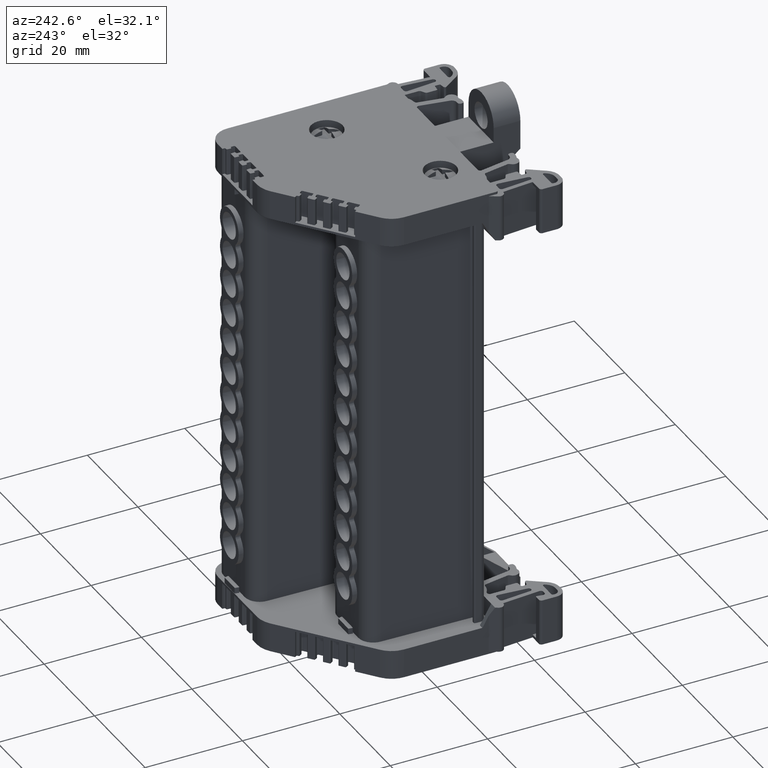
[diagram: clean part render]
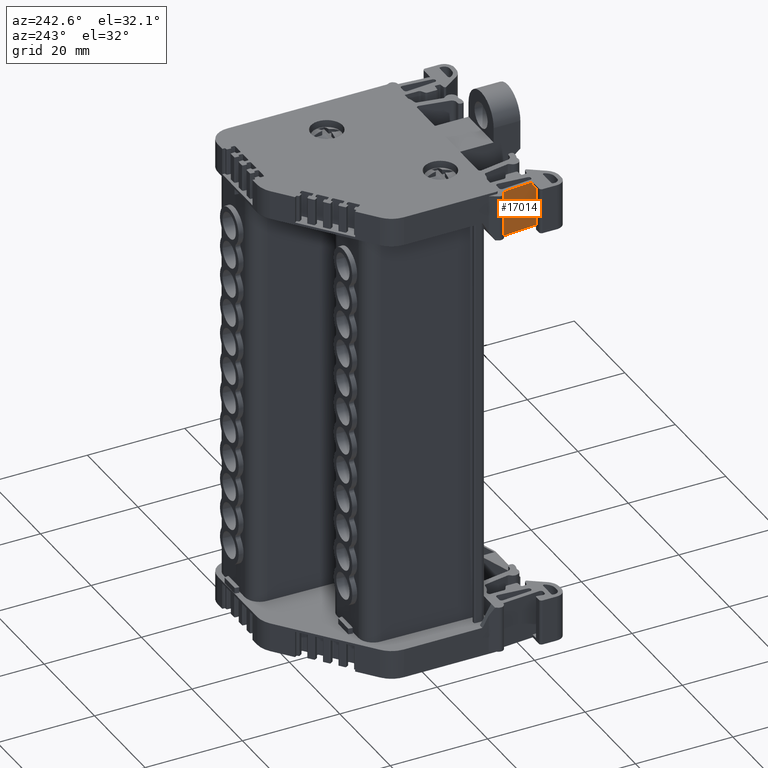
[diagram: same view with one face highlighted and labeled with its STEP entity id]
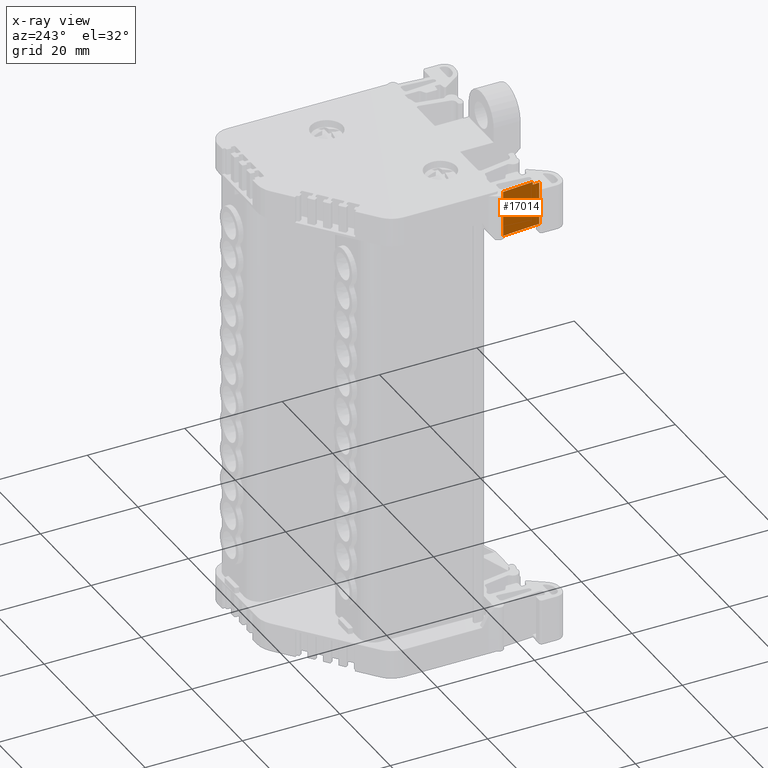
[diagram: x-ray of the same camera — body ghosted, the highlighted face saturated]
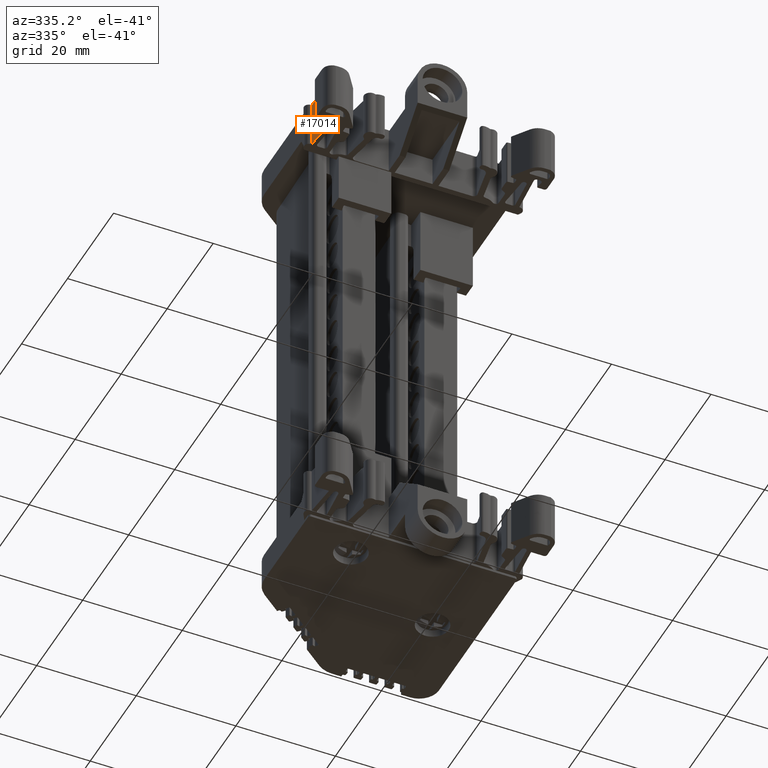
[diagram: same view with one face highlighted and labeled with its STEP entity id]
A machine part, auxiliary view. The second image highlights one B-rep face of the part: STEP entity #17014.
The next image is the same camera in x-ray: the body ghosted, the highlighted face saturated — about 0% of this face is hidden behind the body in this view.
A second angle (auxiliary view) of the same face is appended — the face is thin or edge-on in the first view.
In plain terms, the highlighted planar face has unit normal (-0.9962, -0.0871, -0).
Its self-contained STEP definition (entity closure, byte-faithful):
#1897 = CARTESIAN_POINT ( 'NONE',  ( -66.99594544168915900, 2.679183914619522900, 46.96663835255145600 ) ) ;
#1900 = CARTESIAN_POINT ( 'NONE',  ( -66.99594544168915900, 2.679183914619521500, 55.84043619354250200 ) ) ;
#7030 = AXIS2_PLACEMENT_3D ( 'NONE', #43318, #43320, #43292 ) ;
#9259 = EDGE_CURVE ( 'NONE', #75674, #43588, #89160, .T. ) ;
#9262 = EDGE_CURVE ( 'NONE', #31810, #31804, #89165, .T. ) ;
#10060 = EDGE_CURVE ( 'NONE', #43656, #31810, #90970, .T. ) ;
#13800 = ORIENTED_EDGE ( 'NONE', *, *, #25274, .F. ) ;
#13838 = ORIENTED_EDGE ( 'NONE', *, *, #58546, .F. ) ;
#13846 = ORIENTED_EDGE ( 'NONE', *, *, #9259, .T. ) ;
#13882 = ORIENTED_EDGE ( 'NONE', *, *, #9262, .T. ) ;
#13898 = ORIENTED_EDGE ( 'NONE', *, *, #10060, .T. ) ;
#14666 = VECTOR ( 'NONE', #80209, 1000.000000000000000 ) ;
#15404 = VECTOR ( 'NONE', #86739, 1000.000000000000000 ) ;
#17014 = ADVANCED_FACE ( 'NONE', ( #43294 ), #43339, .T. ) ;
#25274 = EDGE_CURVE ( 'NONE', #75654, #31804, #79955, .T. ) ;
#31804 = VERTEX_POINT ( 'NONE', #65199 ) ;
#31810 = VERTEX_POINT ( 'NONE', #65222 ) ;
#37339 = VECTOR ( 'NONE', #89150, 1000.000000000000100 ) ;
#37395 = VECTOR ( 'NONE', #89147, 1000.000000000000000 ) ;
#37483 = VECTOR ( 'NONE', #90971, 1000.000000000000100 ) ;
#37862 = ORIENTED_EDGE ( 'NONE', *, *, #75256, .T. ) ;
#43292 = DIRECTION ( 'NONE',  ( 0.08710351041733789500, -0.9961992664487243600, 0.0000000000000000000 ) ) ;
#43294 = FACE_OUTER_BOUND ( 'NONE', #77803, .T. ) ;
#43318 = CARTESIAN_POINT ( 'NONE',  ( -64.01358963861210300, -31.42989675365028600, 46.96663835255145600 ) ) ;
#43320 = DIRECTION ( 'NONE',  ( -0.9961992664487244700, -0.08710351041733790900, -3.500543471828530900E-030 ) ) ;
#43339 = PLANE ( 'NONE',  #7030 ) ;
#43588 = VERTEX_POINT ( 'NONE', #69546 ) ;
#43656 = VERTEX_POINT ( 'NONE', #69494 ) ;
#46645 = CARTESIAN_POINT ( 'NONE',  ( -67.44767422112767000, 7.845587387387401400, 46.96663835255145600 ) ) ;
#46661 = CARTESIAN_POINT ( 'NONE',  ( -66.99594544168915900, 2.679183914619522900, 46.96663835255145600 ) ) ;
#46662 = CARTESIAN_POINT ( 'NONE',  ( -67.22180983140842200, 5.262385651003464600, 46.96663835255145600 ) ) ;
#46682 = CARTESIAN_POINT ( 'NONE',  ( -67.67353861084693300, 10.42878912377134200, 46.96663835255145600 ) ) ;
#58546 = EDGE_CURVE ( 'NONE', #43656, #43588, #80193, .T. ) ;
#65199 = CARTESIAN_POINT ( 'NONE',  ( -67.67353861084693300, 10.42878912377134200, 46.96663835255145600 ) ) ;
#65222 = CARTESIAN_POINT ( 'NONE',  ( -67.67353861084690400, 10.42878912377134300, 56.43866975585651600 ) ) ;
#69494 = CARTESIAN_POINT ( 'NONE',  ( -67.11914388249050500, 4.088199415439874900, 56.43866975585651600 ) ) ;
#69546 = CARTESIAN_POINT ( 'NONE',  ( -67.11914388249050500, 4.088199415439875800, 55.84043619354250200 ) ) ;
#75256 = EDGE_CURVE ( 'NONE', #75654, #75674, #86716, .T. ) ;
#75654 = VERTEX_POINT ( 'NONE', #1897 ) ;
#75674 = VERTEX_POINT ( 'NONE', #1900 ) ;
#77803 = EDGE_LOOP ( 'NONE', ( #13882, #13800, #37862, #13846, #13838, #13898 ) ) ;
#79955 = B_SPLINE_CURVE_WITH_KNOTS ( 'NONE', 3,
 ( #46661, #46662, #46645, #46682 ),
 .UNSPECIFIED., .F., .F.,
 ( 4, 4 ),
 ( 0.0000000000000000000, 1.000000000000000000 ),
 .UNSPECIFIED. ) ;
#80193 = LINE ( 'NONE', #80204, #14666 ) ;
#80204 = CARTESIAN_POINT ( 'NONE',  ( -67.11914388249051900, 4.088199415439873100, 46.96663835255145600 ) ) ;
#80209 = DIRECTION ( 'NONE',  ( -0.0000000000000000000, -7.151619244811209800E-046, -1.000000000000000000 ) ) ;
#86716 = LINE ( 'NONE', #86728, #15404 ) ;
#86728 = CARTESIAN_POINT ( 'NONE',  ( -66.99594544168915900, 2.679183914619520700, 46.96663835255145600 ) ) ;
#86739 = DIRECTION ( 'NONE',  ( -3.487238838807453000E-030, -3.049096247647605500E-031, 1.000000000000000000 ) ) ;
#89147 = DIRECTION ( 'NONE',  ( 3.487238838807453000E-030, 3.049096247647605500E-031, -1.000000000000000000 ) ) ;
#89148 = CARTESIAN_POINT ( 'NONE',  ( -64.01358963861210300, -31.42989675365028600, 55.84043619354250200 ) ) ;
#89150 = DIRECTION ( 'NONE',  ( -0.08710351041733789500, 0.9961992664487243600, -0.0000000000000000000 ) ) ;
#89160 = LINE ( 'NONE', #89148, #37339 ) ;
#89161 = CARTESIAN_POINT ( 'NONE',  ( -67.67353861084690400, 10.42878912377134200, 46.96663835255145600 ) ) ;
#89165 = LINE ( 'NONE', #89161, #37395 ) ;
#90970 = LINE ( 'NONE', #90978, #37483 ) ;
#90971 = DIRECTION ( 'NONE',  ( -0.08710351041733789500, 0.9961992664487243600, -0.0000000000000000000 ) ) ;
#90978 = CARTESIAN_POINT ( 'NONE',  ( -64.01358963861210300, -31.42989675365028600, 56.43866975585651600 ) ) ;